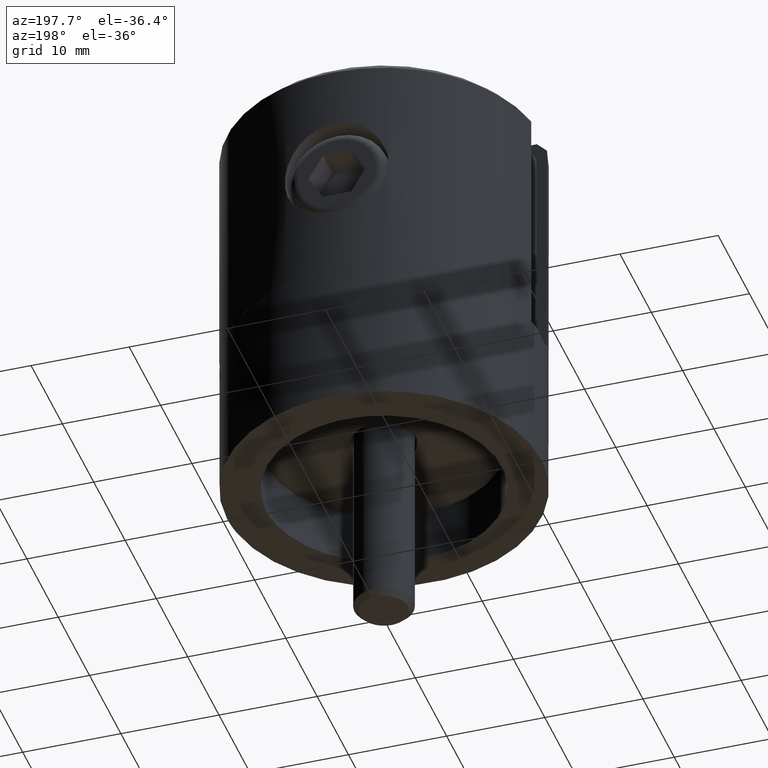
[diagram: clean part render]
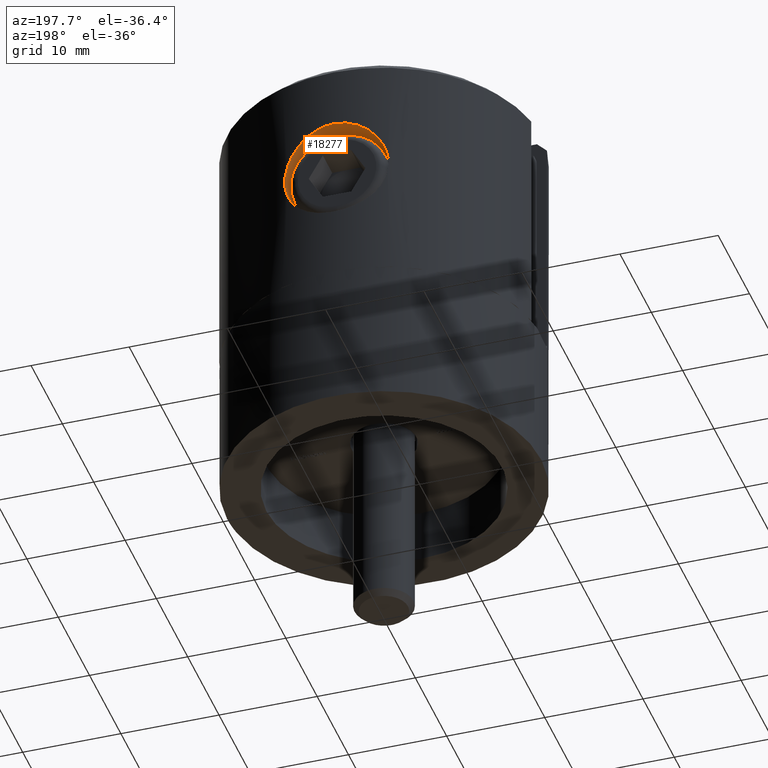
[diagram: same view with one face highlighted and labeled with its STEP entity id]
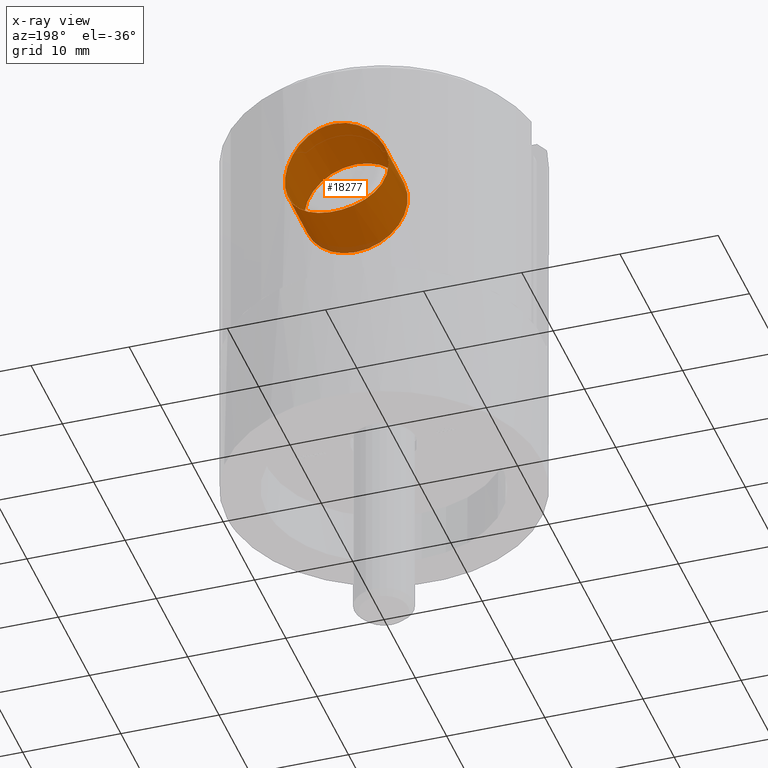
[diagram: x-ray of the same camera — body ghosted, the highlighted face saturated]
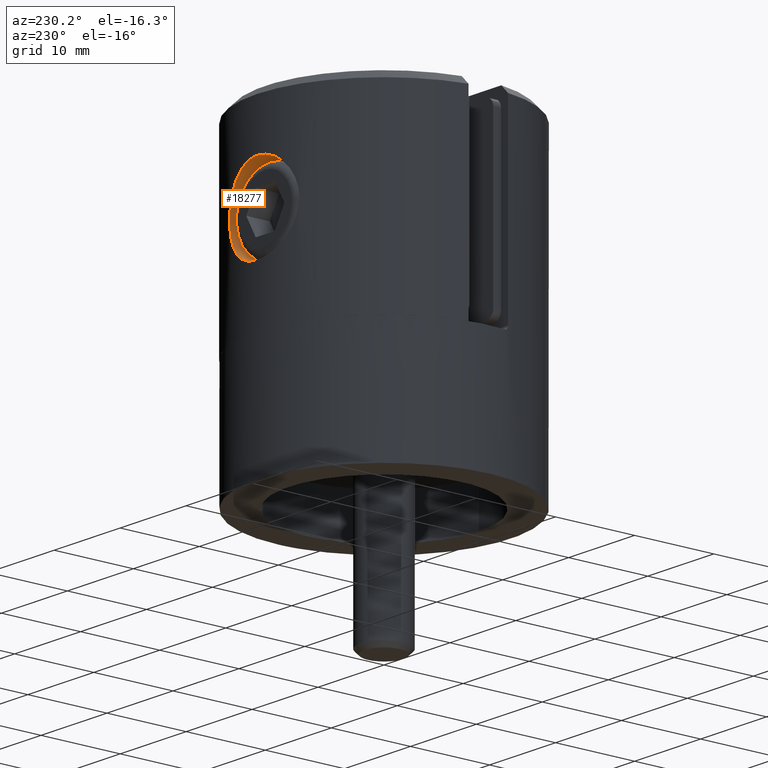
[diagram: same view with one face highlighted and labeled with its STEP entity id]
A machine part, auxiliary view. The second image highlights one B-rep face of the part: STEP entity #18277.
The next image is the same camera in x-ray: the body ghosted, the highlighted face saturated — about 5% of this face is hidden behind the body in this view.
A second angle (auxiliary view) of the same face is appended — the face is thin or edge-on in the first view.
In plain terms, the highlighted cylindrical surface (bore or boss wall) has radius 5.292 mm, axis along (0, 1, 0).
Its self-contained STEP definition (entity closure, byte-faithful):
#468 = CARTESIAN_POINT ( 'NONE',  ( -4.752670302374773392, 15.27847769142526069, 10.14647862557031388 ) ) ;
#534 = CARTESIAN_POINT ( 'NONE',  ( -4.752901296814642684, 15.27839153401004246, 14.85241008590862499 ) ) ;
#725 = CARTESIAN_POINT ( 'NONE',  ( 4.753422712762452207, 15.27823139355765036, 14.85148223343536422 ) ) ;
#863 = CARTESIAN_POINT ( 'NONE',  ( 4.587318680221796008, 15.32957554898225894, 9.839282640875342878 ) ) ;
#931 = CARTESIAN_POINT ( 'NONE',  ( -0.6965300852330672532, 15.98577589387532782, 7.251124774988615407 ) ) ;
#989 = CARTESIAN_POINT ( 'NONE',  ( 4.751803595193742957, 15.27874753075952974, 10.14476901113674678 ) ) ;
#1053 = EDGE_LOOP ( 'NONE', ( #5872 ) ) ;
#1933 = CARTESIAN_POINT ( 'NONE',  ( 1.530808498934191521E-15, 16.00000000000000000, 12.50000000000000000 ) ) ;
#2001 = CARTESIAN_POINT ( 'NONE',  ( -4.301980272546278350, 15.41112690705016064, 9.413281170072306026 ) ) ;
#2068 = CARTESIAN_POINT ( 'NONE',  ( -5.257552708617123649, 15.11169680484459832, 13.19660663491658781 ) ) ;
#2100 = FACE_OUTER_BOUND ( 'NONE', #12994, .T. ) ;
#2130 = CARTESIAN_POINT ( 'NONE',  ( -2.355317495673049599, 15.82897697003034310, 17.25163051903010469 ) ) ;
#2274 = CARTESIAN_POINT ( 'NONE',  ( 3.232030926237216661, 15.67286010056281853, 8.295506252668477742 ) ) ;
#2401 = CARTESIAN_POINT ( 'NONE',  ( 5.155620129302012522, 15.14664586866078366, 13.70638334576021933 ) ) ;
#2471 = CARTESIAN_POINT ( 'NONE',  ( 4.205712339177186898, 15.43863215786812049, 9.269691460688026297 ) ) ;
#2530 = CARTESIAN_POINT ( 'NONE',  ( 1.875901854067217434, 15.89046853512453694, 17.45140457388313138 ) ) ;
#2855 = EDGE_CURVE ( 'NONE', #7975, #7975, #6991, .T. ) ;
#3315 = ORIENTED_EDGE ( 'NONE', *, *, #2855, .F. ) ;
#3541 = CARTESIAN_POINT ( 'NONE',  ( -3.980548691252966620, 15.49735657311758530, 9.008524026731866030 ) ) ;
#3743 = CARTESIAN_POINT ( 'NONE',  ( -3.985433837877573993, 15.49768834756668490, 15.99843624459898450 ) ) ;
#3806 = CARTESIAN_POINT ( 'NONE',  ( 2.355687374283917723, 15.82892065562720774, 17.25144310635947420 ) ) ;
#3869 = CARTESIAN_POINT ( 'NONE',  ( 0.6942526277363881837, 15.98863385113679136, 7.242051396129774332 ) ) ;
#3995 = CARTESIAN_POINT ( 'NONE',  ( 4.952276329194662985, 15.21446038016538793, 14.37353398025522111 ) ) ;
#4537 = CARTESIAN_POINT ( 'NONE',  ( 0.000000000000000000, 16.00000000000000000, 17.79201239237409027 ) ) ;
#4797 = EDGE_CURVE ( 'NONE', #6293, #6293, #10175, .T. ) ;
#5038 = CARTESIAN_POINT ( 'NONE',  ( -3.498146977046135753, 15.61492046564176661, 8.514146728241241746 ) ) ;
#5170 = CARTESIAN_POINT ( 'NONE',  ( -3.231775796556548119, 15.67292911003706557, 16.70477095271068535 ) ) ;
#5244 = CARTESIAN_POINT ( 'NONE',  ( -1.377996493300520431, 15.94418833040542260, 17.62119827275211748 ) ) ;
#5310 = CARTESIAN_POINT ( 'NONE',  ( 2.350713600823367333, 15.82964919961484007, 7.746144635887556973 ) ) ;
#5331 = DIRECTION ( 'NONE',  ( 0.000000000000000000, 0.000000000000000000, 1.000000000000000000 ) ) ;
#5437 = CARTESIAN_POINT ( 'NONE',  ( -0.3492385583360302914, 15.99713154031720208, 7.216641435909873614 ) ) ;
#5500 = CARTESIAN_POINT ( 'NONE',  ( 5.120256875218851533, 15.15876529373871051, 11.11858026866411109 ) ) ;
#5872 = ORIENTED_EDGE ( 'NONE', *, *, #4797, .F. ) ;
#6293 = VERTEX_POINT ( 'NONE', #15181 ) ;
#6322 = DIRECTION ( 'NONE',  ( 0.000000000000000000, 0.000000000000000000, 1.000000000000000000 ) ) ;
#6579 = CARTESIAN_POINT ( 'NONE',  ( -6.234162491791650496E-16, 15.99999999999999645, 17.79201239237409382 ) ) ;
#6646 = CARTESIAN_POINT ( 'NONE',  ( -5.257295034990906224, 15.11178454863896548, 11.80230908429324366 ) ) ;
#6782 = CARTESIAN_POINT ( 'NONE',  ( -4.203550065317379847, 15.43925583066509688, 15.73362534227694809 ) ) ;
#6913 = CARTESIAN_POINT ( 'NONE',  ( 1.380987474259348202, 15.94400428790630464, 7.379366852819999600 ) ) ;
#6986 = CARTESIAN_POINT ( 'NONE',  ( 3.497081026042447860, 15.61517221440689696, 8.513117414624652213 ) ) ;
#6991 = B_SPLINE_CURVE_WITH_KNOTS ( 'NONE', 3,
 ( #6579, #18904, #15642, #5244, #8071, #2130, #15911, #5170, #11167, #3743, #6782, #15846, #534, #17451, #8327, #17383, #14230, #2068, #18703, #8261, #6646, #18965, #11043, #468, #11102, #2001, #12646, #3541, #14169, #5038, #15708, #17578, #19032, #8524, #10116, #13106, #931, #5437, #11563, #16240, #3869, #6913, #8593, #5310, #14693, #2274, #6986, #7111, #2471, #863, #989, #17774, #5500, #8467, #8660, #11630, #19172, #2401, #19098, #11363, #3995, #725, #9850, #9986, #12917, #19229, #13042, #17647, #3806, #2530, #14435, #14628, #11503, #9916, #10052, #13173 ),
 .UNSPECIFIED., .T., .F.,
 ( 4, 2, 2, 2, 2, 2, 2, 2, 2, 2, 2, 2, 2, 2, 2, 2, 2, 2, 2, 2, 2, 2, 2, 2, 2, 2, 2, 2, 2, 2, 2, 2, 2, 2, 2, 2, 2, 4 ),
 ( 0.000000000000000000, 0.001041331024074896748, 0.002082662048149793495, 0.003123993072224690460, 0.004165324096299586991, 0.005206655120374484823, 0.006247986144449387859, 0.006768651656486837642, 0.007289317168524288293, 0.008330648192599189594, 0.009371979216674089161, 0.01041331024074899046, 0.01145464126482389176, 0.01197530677686134068, 0.01249597228889879133, 0.01353730331297369610, 0.01457863433704860087, 0.01561996536112350391, 0.01614063087316095629, 0.01666129638519840694, 0.01770262740927331171, 0.01874395843334821649, 0.01978528945742311779, 0.02082662048149802603, 0.02186795150557292733, 0.02290928252964783557, 0.02395061355372273687, 0.02499194457779764164, 0.02603327560187254641, 0.02655394111391000053, 0.02707460662594745118, 0.02811593765002235248, 0.02915726867409726072, 0.03019859969817216203, 0.03123993072224706680, 0.03176059623428451745, 0.03228126174632196810, 0.03332259277039687634 ),
 .UNSPECIFIED. ) ;
#7111 = CARTESIAN_POINT ( 'NONE',  ( 3.985851892484717496, 15.49761800017884639, 9.001744271290140986 ) ) ;
#7340 = FACE_OUTER_BOUND ( 'NONE', #1053, .T. ) ;
#7945 = DIRECTION ( 'NONE',  ( -0.000000000000000000, 1.000000000000000000, -0.000000000000000000 ) ) ;
#7975 = VERTEX_POINT ( 'NONE', #4537 ) ;
#8071 = CARTESIAN_POINT ( 'NONE',  ( -1.715477301007276800, 15.91103925118983398, 17.51823183248151139 ) ) ;
#8261 = CARTESIAN_POINT ( 'NONE',  ( -5.292252921575840929, 15.09940591810568833, 12.15576239974241979 ) ) ;
#8327 = CARTESIAN_POINT ( 'NONE',  ( -5.010039682161589347, 15.19547209525473264, 14.21321971343113688 ) ) ;
#8467 = CARTESIAN_POINT ( 'NONE',  ( 5.256629011473251900, 15.11201664684831592, 11.79771631224429207 ) ) ;
#8524 = CARTESIAN_POINT ( 'NONE',  ( -1.715160400946374564, 15.91104662586404572, 7.481760897358329387 ) ) ;
#8593 = CARTESIAN_POINT ( 'NONE',  ( 1.712035268503111496, 15.91139791015749516, 7.480644414329857383 ) ) ;
#8660 = CARTESIAN_POINT ( 'NONE',  ( 5.291977408256522963, 15.09950247895189435, 12.15069747428299429 ) ) ;
#9716 = CYLINDRICAL_SURFACE ( 'NONE', #13826, 5.292012392374090268 ) ;
#9850 = CARTESIAN_POINT ( 'NONE',  ( 4.589517636115449051, 15.32894680940010090, 15.15743025044649528 ) ) ;
#9916 = CARTESIAN_POINT ( 'NONE',  ( 0.6984311090703946290, 15.98837867808133595, 17.75716528833122965 ) ) ;
#9986 = CARTESIAN_POINT ( 'NONE',  ( 4.203559862595276364, 15.43924761441470039, 15.73352627170104157 ) ) ;
#10052 = CARTESIAN_POINT ( 'NONE',  ( 0.3522860916290813105, 15.99999999999999289, 17.79201239237409737 ) ) ;
#10116 = CARTESIAN_POINT ( 'NONE',  ( -1.384925815396719440, 15.94364300330872553, 7.380490071870023705 ) ) ;
#10175 = CIRCLE ( 'NONE', #16850, 5.292012392374090268 ) ;
#11043 = CARTESIAN_POINT ( 'NONE',  ( -5.020348485948653128, 15.19262507436050846, 10.79031027885010552 ) ) ;
#11102 = CARTESIAN_POINT ( 'NONE',  ( -4.588499673180546523, 15.32922496382492028, 9.841249378424246075 ) ) ;
#11167 = CARTESIAN_POINT ( 'NONE',  ( -3.501153233648437002, 15.61422278017439780, 16.48304720887621855 ) ) ;
#11363 = CARTESIAN_POINT ( 'NONE',  ( 5.010940025557264477, 15.19517526442422906, 14.21062285434933514 ) ) ;
#11381 = DIRECTION ( 'NONE',  ( -0.000000000000000000, 1.000000000000000000, -0.000000000000000000 ) ) ;
#11503 = CARTESIAN_POINT ( 'NONE',  ( 1.208364794803681974, 15.95521448350475957, 17.65512357894530027 ) ) ;
#11563 = CARTESIAN_POINT ( 'NONE',  ( -0.1756559005377937022, 15.99997669933474853, 7.208058055433562039 ) ) ;
#11630 = CARTESIAN_POINT ( 'NONE',  ( 5.292047323327498276, 15.09947797538161751, 12.84824168566101399 ) ) ;
#12646 = CARTESIAN_POINT ( 'NONE',  ( -4.199549525447852538, 15.43944987430242044, 9.275258748572982270 ) ) ;
#12917 = CARTESIAN_POINT ( 'NONE',  ( 3.985607334033227644, 15.49764926323538106, 15.99828359294880720 ) ) ;
#12994 = EDGE_LOOP ( 'NONE', ( #3315 ) ) ;
#13042 = CARTESIAN_POINT ( 'NONE',  ( 3.230433189615292910, 15.67319358552446040, 16.70573557663903230 ) ) ;
#13106 = CARTESIAN_POINT ( 'NONE',  ( -0.8712513173556744039, 15.97718260754328590, 7.277278691392724319 ) ) ;
#13173 = CARTESIAN_POINT ( 'NONE',  ( -6.234162491791650496E-16, 15.99999999999999645, 17.79201239237409382 ) ) ;
#13826 = AXIS2_PLACEMENT_3D ( 'NONE', #1933, #7945, #6322 ) ;
#14169 = CARTESIAN_POINT ( 'NONE',  ( -3.863545061404868974, 15.52703168393198929, 8.879491669181454938 ) ) ;
#14230 = CARTESIAN_POINT ( 'NONE',  ( -5.154832061183152625, 15.14691442579503189, 13.70976572678482341 ) ) ;
#14383 = CARTESIAN_POINT ( 'NONE',  ( 1.530808498934191521E-15, 9.000000000000001776, 12.50000000000000000 ) ) ;
#14435 = CARTESIAN_POINT ( 'NONE',  ( 1.710625952588486820, 15.90917589841034108, 17.51094822412147067 ) ) ;
#14628 = CARTESIAN_POINT ( 'NONE',  ( 1.376816663495118220, 15.94153363987768302, 17.61275064222944309 ) ) ;
#14693 = CARTESIAN_POINT ( 'NONE',  ( 2.660365848181708959, 15.77995631153003586, 7.912381322152849172 ) ) ;
#15181 = CARTESIAN_POINT ( 'NONE',  ( 1.530808498934191521E-15, 9.000000000000001776, 17.79201239237409027 ) ) ;
#15642 = CARTESIAN_POINT ( 'NONE',  ( -0.6982098491548247576, 15.98838699986739087, 17.75719022776721090 ) ) ;
#15708 = CARTESIAN_POINT ( 'NONE',  ( -3.233612801261692926, 15.67253309527159111, 8.296719999677064195 ) ) ;
#15846 = CARTESIAN_POINT ( 'NONE',  ( -4.590324926244765180, 15.32871067075936899, 15.15614063583641880 ) ) ;
#15911 = CARTESIAN_POINT ( 'NONE',  ( -2.658368214889932357, 15.78030925303806598, 17.08885083632396018 ) ) ;
#16240 = CARTESIAN_POINT ( 'NONE',  ( 0.3449056875652130594, 16.00004617384833239, 7.207848004470791992 ) ) ;
#16850 = AXIS2_PLACEMENT_3D ( 'NONE', #14383, #11381, #5331 ) ;
#17383 = CARTESIAN_POINT ( 'NONE',  ( -5.111680129427511154, 15.16158290116553431, 13.88070476849280332 ) ) ;
#17451 = CARTESIAN_POINT ( 'NONE',  ( -4.951432503723081524, 15.21473449692821944, 14.37572346555722369 ) ) ;
#17578 = CARTESIAN_POINT ( 'NONE',  ( -2.662034064318531179, 15.77967426822476860, 7.913346628531211735 ) ) ;
#17647 = CARTESIAN_POINT ( 'NONE',  ( 2.658322830447825691, 15.78030467041155482, 17.08881575815538412 ) ) ;
#17774 = CARTESIAN_POINT ( 'NONE',  ( 5.019540321833638075, 15.19289236694161183, 10.78799375711294850 ) ) ;
#18277 = ADVANCED_FACE ( 'NONE', ( #7340, #2100 ), #9716, .F. ) ;
#18703 = CARTESIAN_POINT ( 'NONE',  ( -5.291769306872487810, 15.09957541351727528, 12.85159367770398298 ) ) ;
#18904 = CARTESIAN_POINT ( 'NONE',  ( -0.3522860916290787570, 16.00000000000000000, 17.79201239237408672 ) ) ;
#18965 = CARTESIAN_POINT ( 'NONE',  ( -5.121087635809609573, 15.15848424994337051, 11.12145543229183353 ) ) ;
#19032 = CARTESIAN_POINT ( 'NONE',  ( -2.352381994514662900, 15.82938656054863280, 7.747022212955370080 ) ) ;
#19098 = CARTESIAN_POINT ( 'NONE',  ( 5.112603964691076364, 15.16127144920658587, 13.87732755355404635 ) ) ;
#19172 = CARTESIAN_POINT ( 'NONE',  ( 5.257938121933047881, 15.11156135741949846, 13.19355605481253768 ) ) ;
#19229 = CARTESIAN_POINT ( 'NONE',  ( 3.500656428966874234, 15.61433966178821642, 16.48352337562203829 ) ) ;